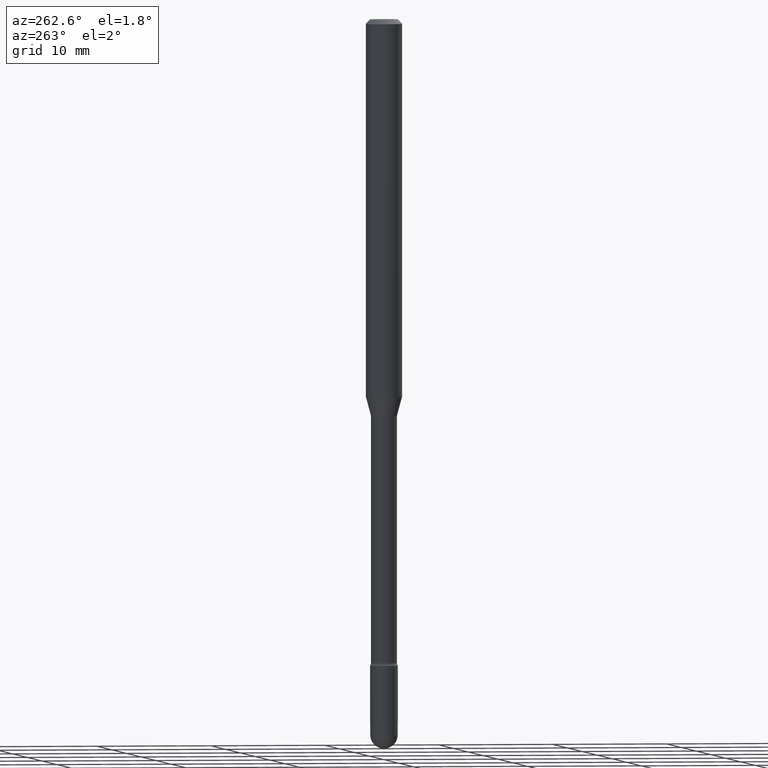
[diagram: clean part render]
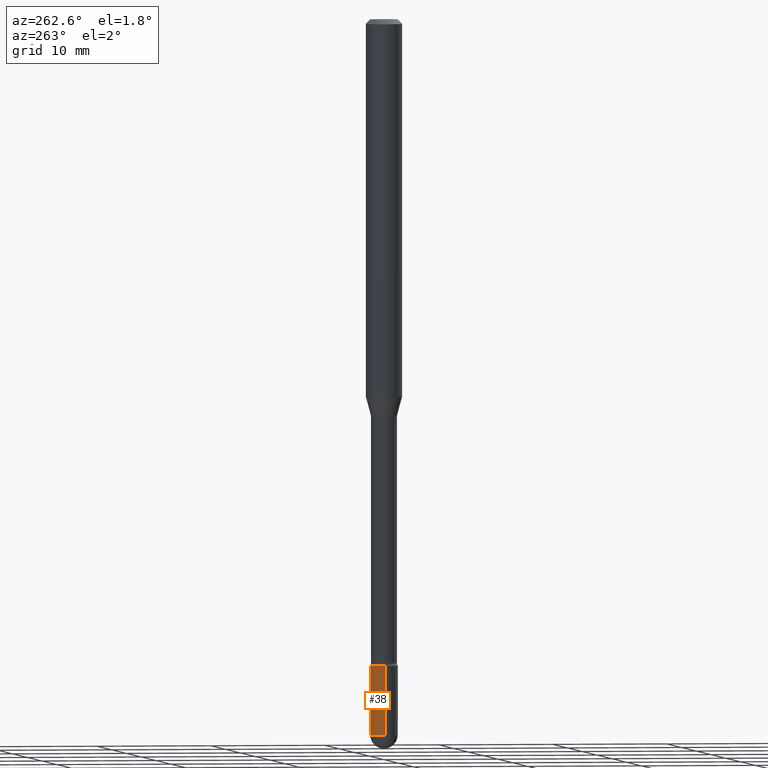
[diagram: same view with one face highlighted and labeled with its STEP entity id]
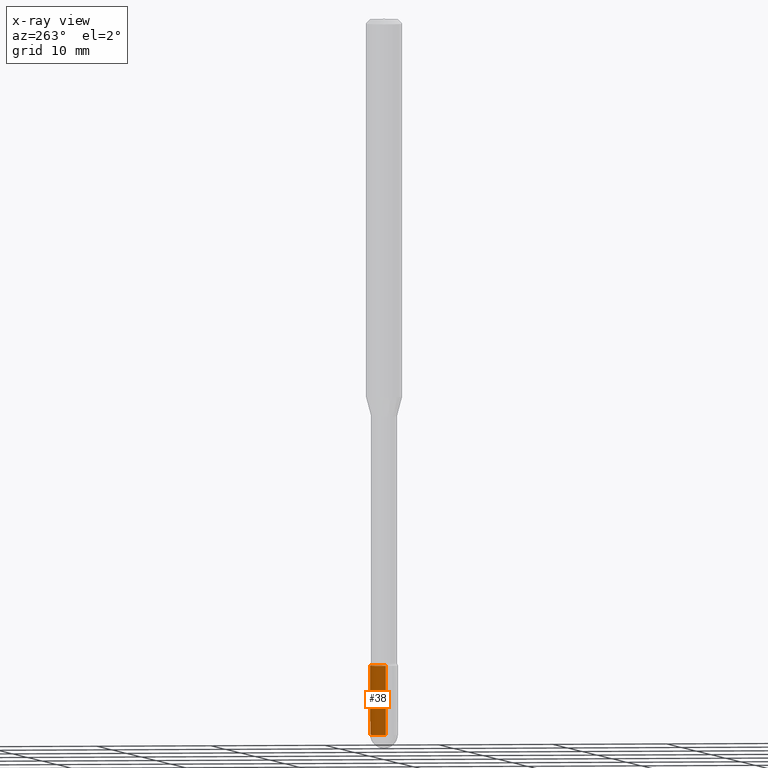
[diagram: x-ray of the same camera — body ghosted, the highlighted face saturated]
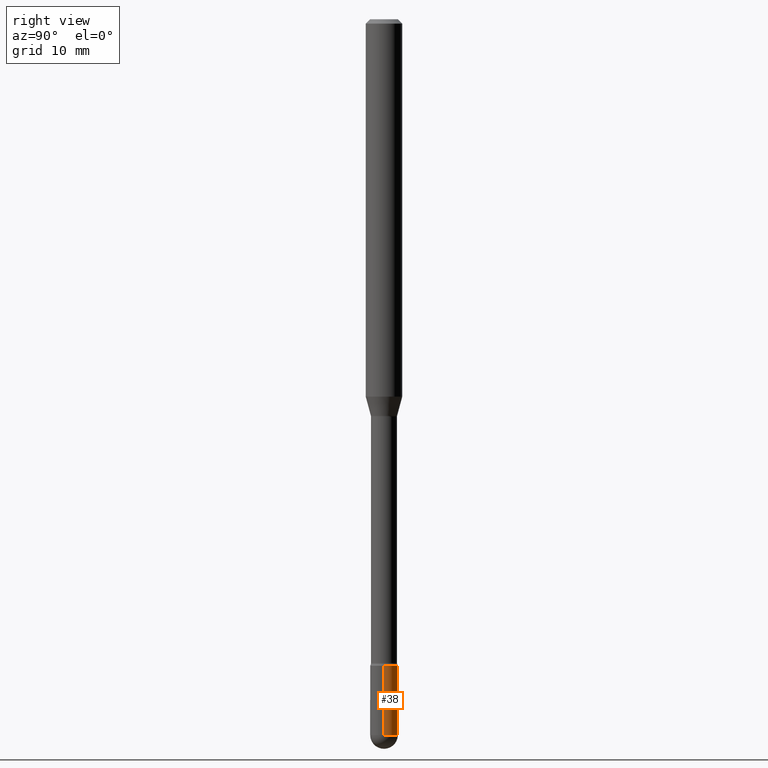
[diagram: same view with one face highlighted and labeled with its STEP entity id]
A machine part, auxiliary view. The second image highlights one B-rep face of the part: STEP entity #38.
The next image is the same camera in x-ray: the body ghosted, the highlighted face saturated — about 0% of this face is hidden behind the body in this view.
A second angle (right view) of the same face is appended — the face is thin or edge-on in the first view.
In plain terms, the highlighted cylindrical surface (edge-blend (fillet) strip) has radius 1.2065 mm, axis along (-0, 0, 1).
Its self-contained STEP definition (entity closure, byte-faithful):
#11 = CARTESIAN_POINT ( 'NONE',  ( -0.04749999999999999362, -7.810736775039144241E-15, -2.215000000000000302 ) ) ;
#34 = ORIENTED_EDGE ( 'NONE', *, *, #330, .T. ) ;
#38 = ADVANCED_FACE ( 'NONE', ( #488 ), #51, .T. ) ;
#51 = CYLINDRICAL_SURFACE ( 'NONE', #100, 0.04750000000000000749 ) ;
#53 = ORIENTED_EDGE ( 'NONE', *, *, #412, .F. ) ;
#60 = DIRECTION ( 'NONE',  ( -2.445468806185136597E-29, 3.491481338843145583E-15, 1.000000000000000000 ) ) ;
#70 = VECTOR ( 'NONE', #138, 39.37007874015748143 ) ;
#72 = CARTESIAN_POINT ( 'NONE',  ( 5.997512247169047773E-29, -8.562857983512815004E-15, -2.452500000000000124 ) ) ;
#76 = ORIENTED_EDGE ( 'NONE', *, *, #163, .T. ) ;
#77 = LINE ( 'NONE', #212, #246 ) ;
#89 = LINE ( 'NONE', #352, #70 ) ;
#92 = ORIENTED_EDGE ( 'NONE', *, *, #374, .T. ) ;
#100 = AXIS2_PLACEMENT_3D ( 'NONE', #541, #192, #193 ) ;
#114 = VERTEX_POINT ( 'NONE', #11 ) ;
#123 = CARTESIAN_POINT ( 'NONE',  ( 0.04749999999999999362, -8.065321892727665188E-15, -2.215000000000000302 ) ) ;
#138 = DIRECTION ( 'NONE',  ( -2.445468806185136877E-29, 3.491481338843145188E-15, 1.000000000000000000 ) ) ;
#163 = EDGE_CURVE ( 'NONE', #273, #482, #376, .T. ) ;
#185 = CARTESIAN_POINT ( 'NONE',  ( -0.04750000000000000749, -7.810736775039144241E-15, -2.452500000000000124 ) ) ;
#192 = DIRECTION ( 'NONE',  ( -2.445468806185136597E-29, 3.491481338843145583E-15, 1.000000000000000000 ) ) ;
#193 = DIRECTION ( 'NONE',  ( 1.000000000000000000, -6.982962677686266711E-15, 4.876176775795934672E-29 ) ) ;
#202 = DIRECTION ( 'NONE',  ( -2.445468806185136877E-29, 3.491481338843145188E-15, 1.000000000000000000 ) ) ;
#204 = EDGE_CURVE ( 'NONE', #368, #114, #451, .T. ) ;
#209 = VERTEX_POINT ( 'NONE', #416 ) ;
#212 = CARTESIAN_POINT ( 'NONE',  ( -0.04750000000000000749, 3.375077994860476415E-16, -2.336494167871080260E-30 ) ) ;
#244 = DIRECTION ( 'NONE',  ( 1.000000000000000000, -6.982962677686261977E-15, 0.000000000000000000 ) ) ;
#246 = VECTOR ( 'NONE', #202, 39.37007874015748143 ) ;
#256 = DIRECTION ( 'NONE',  ( -2.445468806185136597E-29, 3.491481338843145583E-15, 1.000000000000000000 ) ) ;
#269 = EDGE_LOOP ( 'NONE', ( #76, #34, #401, #53, #92 ) ) ;
#270 = AXIS2_PLACEMENT_3D ( 'NONE', #289, #60, #244 ) ;
#273 = VERTEX_POINT ( 'NONE', #554 ) ;
#277 = DIRECTION ( 'NONE',  ( 1.000000000000000000, -6.982962677686280910E-15, 0.000000000000000000 ) ) ;
#288 = AXIS2_PLACEMENT_3D ( 'NONE', #72, #256, #388 ) ;
#289 = CARTESIAN_POINT ( 'NONE',  ( 5.416713405700078055E-29, -7.733631165537568465E-15, -2.215000000000000302 ) ) ;
#321 = CIRCLE ( 'NONE', #288, 0.04750000000000000749 ) ;
#327 = DIRECTION ( 'NONE',  ( -2.445468806185136597E-29, 3.491481338843145583E-15, 1.000000000000000000 ) ) ;
#330 = EDGE_CURVE ( 'NONE', #482, #114, #77, .T. ) ;
#352 = CARTESIAN_POINT ( 'NONE',  ( 0.04750000000000000749, -3.316907271900977082E-16, 2.316183968503069432E-30 ) ) ;
#368 = VERTEX_POINT ( 'NONE', #123 ) ;
#374 = EDGE_CURVE ( 'NONE', #209, #273, #321, .T. ) ;
#376 = CIRCLE ( 'NONE', #471, 0.04750000000000000749 ) ;
#388 = DIRECTION ( 'NONE',  ( 1.000000000000000000, -6.982962677686280910E-15, 0.000000000000000000 ) ) ;
#401 = ORIENTED_EDGE ( 'NONE', *, *, #204, .F. ) ;
#412 = EDGE_CURVE ( 'NONE', #209, #368, #89, .T. ) ;
#413 = CARTESIAN_POINT ( 'NONE',  ( 5.997512247169047773E-29, -8.562857983512815004E-15, -2.452500000000000124 ) ) ;
#416 = CARTESIAN_POINT ( 'NONE',  ( 0.04750000000000000749, -8.479935301715289246E-15, -2.452500000000000124 ) ) ;
#451 = CIRCLE ( 'NONE', #270, 0.04749999999999999362 ) ;
#471 = AXIS2_PLACEMENT_3D ( 'NONE', #413, #327, #277 ) ;
#482 = VERTEX_POINT ( 'NONE', #185 ) ;
#488 = FACE_OUTER_BOUND ( 'NONE', #269, .T. ) ;
#541 = CARTESIAN_POINT ( 'NONE',  ( 0.000000000000000000, 0.000000000000000000, 0.000000000000000000 ) ) ;
#554 = CARTESIAN_POINT ( 'NONE',  ( 3.316907271901575630E-16, 0.04749999999999143102, -2.452500000000000568 ) ) ;